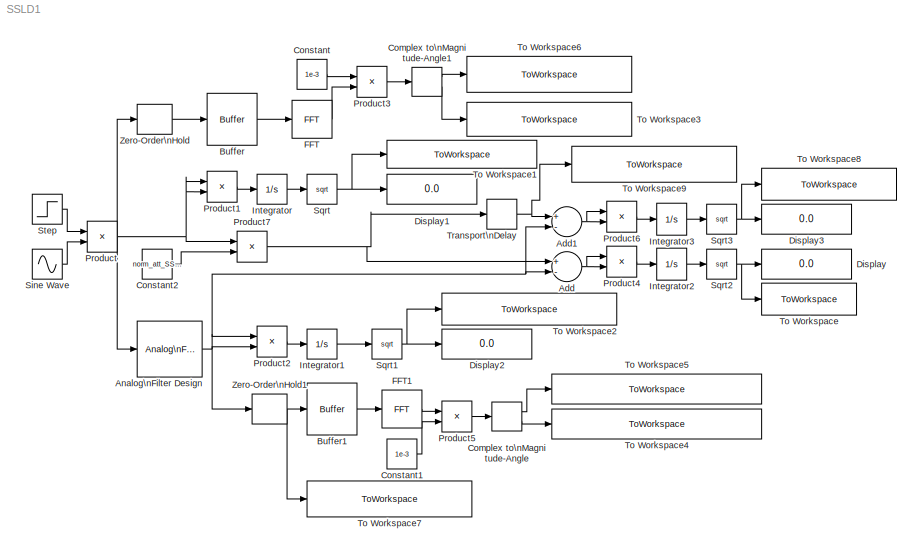
MODEL SSLD1
KIND model
BLOCK [Sum] Add
  InputSameDT = off
  Inputs = +-
  OutDataTypeStr = Inherit: Inherit via internal rule
  Ports = [2, 1]
  SID = 22
  SaturateOnIntegerOverflow = off
BLOCK [Sum] Add1
  InputSameDT = off
  Inputs = +-
  OutDataTypeStr = Inherit: Inherit via internal rule
  Ports = [2, 1]
  SID = 116
  SaturateOnIntegerOverflow = off
BLOCK [Reference] Analog\nFilter Design  REF=dsparch4/Analog\nFilter Design
  N = 2
  Ports = [1, 1]
  Rp = 2
  Rs = 40
  SID = 37
  SourceBlock = dsparch4/Analog\nFilter Design
  SourceType = Analog Filter Design
  Whi = 80
  Wlo = cutoff_SSLD1*2*pi
  filttype = Lowpass
  method = Butterworth
BLOCK [Buffer] Buffer
  N = 2000
  SID = 86
  TreatMby1Signals = One channel
BLOCK [Buffer] Buffer1
  N = 2000
  SID = 93
  TreatMby1Signals = One channel
BLOCK [ComplexToMagnitudeAngle] Complex to\nMagnitude-Angle
  Ports = [1, 2]
  SID = 108
BLOCK [ComplexToMagnitudeAngle] Complex to\nMagnitude-Angle1
  Ports = [1, 2]
  SID = 111
BLOCK [Constant] Constant
  SID = 102
  Value = 1e-3
BLOCK [Constant] Constant1
  SID = 104
  Value = 1e-3
BLOCK [Constant] Constant2
  SID = 125
  Value = norm_att_SSLD1
BLOCK [Display] Display
  Decimation = 1
  Ports = [1]
  SID = 34
BLOCK [Display] Display1
  Decimation = 1
  Ports = [1]
  SID = 51
BLOCK [Display] Display2
  Decimation = 1
  Ports = [1]
  SID = 58
BLOCK [Display] Display3
  Decimation = 1
  Ports = [1]
  SID = 117
BLOCK [Reference] FFT  REF=dspxfrm3/FFT
  BitRevOrder = off
  CompMethod = Table lookup
  FFTImplementation = FFTW
  FFTLength = 64
  InheritFFTLength = on
  LockScale = off
  Ports = [1, 1]
  RowConvenienceOn = on
  SID = 92
  SkipNorm = off
  SourceBlock = dspxfrm3/FFT
  SourceType = FFT
  TableOpt = NEW
  TableOptActive = Speed
  WrapInput = on
  accumDataTypeStr = Inherit: Inherit via internal rule
  accumFracLength = 30
  accumLastDataTypeStr = Inherit: Inherit via internal rule
  accumMode = Inherit via internal rule
  accumWordLength = 32
  additionalParams = off
  allowOverrides = on
  firstCoeffDataTypeStr = Inherit: Same word length as input
  firstCoeffFracLength = 15
  firstCoeffLastDataTypeStr = Inherit: Same word length as input
  firstCoeffMode = Same word length as input
  firstCoeffWordLength = 16
  outputDataTypeStr = Inherit: Inherit via internal rule
  outputFracLength = 15
  outputLastDataTypeStr = Inherit: Inherit via internal rule
  outputMax = []
  outputMin = []
  outputMode = Inherit via internal rule
  outputWordLength = 16
  overflowMode = off
  prodOutputDataTypeStr = Inherit: Inherit via internal rule
  prodOutputFracLength = 30
  prodOutputLastDataTypeStr = Inherit: Inherit via internal rule
  prodOutputMode = Inherit via internal rule
  prodOutputWordLength = 32
  roundingMode = Floor
BLOCK [Reference] FFT1  REF=dspxfrm3/FFT
  BitRevOrder = off
  CompMethod = Table lookup
  FFTImplementation = FFTW
  FFTLength = 64
  InheritFFTLength = on
  LockScale = off
  Ports = [1, 1]
  RowConvenienceOn = on
  SID = 94
  SkipNorm = off
  SourceBlock = dspxfrm3/FFT
  SourceType = FFT
  TableOpt = NEW
  TableOptActive = Speed
  WrapInput = on
  accumDataTypeStr = Inherit: Inherit via internal rule
  accumFracLength = 30
  accumLastDataTypeStr = Inherit: Inherit via internal rule
  accumMode = Inherit via internal rule
  accumWordLength = 32
  additionalParams = off
  allowOverrides = on
  firstCoeffDataTypeStr = Inherit: Same word length as input
  firstCoeffFracLength = 15
  firstCoeffLastDataTypeStr = Inherit: Same word length as input
  firstCoeffMode = Same word length as input
  firstCoeffWordLength = 16
  outputDataTypeStr = Inherit: Inherit via internal rule
  outputFracLength = 15
  outputLastDataTypeStr = Inherit: Inherit via internal rule
  outputMax = []
  outputMin = []
  outputMode = Inherit via internal rule
  outputWordLength = 16
  overflowMode = off
  prodOutputDataTypeStr = Inherit: Inherit via internal rule
  prodOutputFracLength = 30
  prodOutputLastDataTypeStr = Inherit: Inherit via internal rule
  prodOutputMode = Inherit via internal rule
  prodOutputWordLength = 32
  roundingMode = Floor
BLOCK [Integrator] Integrator
  Ports = [1, 1]
  SID = 4
BLOCK [Integrator] Integrator1
  Ports = [1, 1]
  SID = 13
BLOCK [Integrator] Integrator2
  Ports = [1, 1]
  SID = 25
BLOCK [Integrator] Integrator3
  Ports = [1, 1]
  SID = 118
BLOCK [Product] Product
  InputSameDT = off
  OutDataTypeStr = Inherit: Inherit via internal rule
  Ports = [2, 1]
  SID = 6
  SaturateOnIntegerOverflow = off
BLOCK [Product] Product1
  InputSameDT = off
  OutDataTypeStr = Inherit: Inherit via internal rule
  Ports = [2, 1]
  SID = 7
  SaturateOnIntegerOverflow = off
BLOCK [Product] Product2
  InputSameDT = off
  OutDataTypeStr = Inherit: Inherit via internal rule
  Ports = [2, 1]
  SID = 14
  SaturateOnIntegerOverflow = off
BLOCK [Product] Product3
  InputSameDT = off
  OutDataTypeStr = Inherit: Inherit via internal rule
  Ports = [2, 1]
  SID = 101
  SaturateOnIntegerOverflow = off
BLOCK [Product] Product4
  InputSameDT = off
  OutDataTypeStr = Inherit: Inherit via internal rule
  Ports = [2, 1]
  SID = 23
  SaturateOnIntegerOverflow = off
BLOCK [Product] Product5
  InputSameDT = off
  OutDataTypeStr = Inherit: Inherit via internal rule
  Ports = [2, 1]
  SID = 106
  SaturateOnIntegerOverflow = off
BLOCK [Product] Product6
  InputSameDT = off
  OutDataTypeStr = Inherit: Inherit via internal rule
  Ports = [2, 1]
  SID = 119
  SaturateOnIntegerOverflow = off
BLOCK [Product] Product7
  InputSameDT = off
  OutDataTypeStr = Inherit: Inherit via internal rule
  Ports = [2, 1]
  SID = 123
  SaturateOnIntegerOverflow = off
BLOCK [Sin] Sine Wave
  Frequency = 2*pi*10
  Ports = [0, 1]
  SID = 3
  SampleTime = 0
BLOCK [Sqrt] Sqrt
  SID = 8
BLOCK [Sqrt] Sqrt1
  SID = 15
BLOCK [Sqrt] Sqrt2
  SID = 24
BLOCK [Sqrt] Sqrt3
  SID = 120
BLOCK [Step] Step
  After = 0
  Before = 1
  SID = 2
  SampleTime = 0
  Time = 0.05
BLOCK [ToWorkspace] To Workspace
  MaxDataPoints = 1
  Ports = [1]
  SID = 54
  SampleTime = -1
  VariableName = distance_SSLD1
BLOCK [ToWorkspace] To Workspace1
  MaxDataPoints = 1
  Ports = [1]
  SID = 55
  SampleTime = -1
  VariableName = norm_sine_pulse_SSLD1
BLOCK [ToWorkspace] To Workspace2
  MaxDataPoints = 1
  Ports = [1]
  SID = 56
  SampleTime = -1
  VariableName = norm_filtered_sine_pulse_SSLD1
BLOCK [ToWorkspace] To Workspace3
  MaxDataPoints = 200000
  Ports = [1]
  SID = 61
  SampleTime = -1
  VariableName = sine_pulse_FFT_arg_SSLD1
BLOCK [ToWorkspace] To Workspace4
  MaxDataPoints = 200000
  Ports = [1]
  SID = 95
  SampleTime = -1
  VariableName = filtered_sine_pulse_FFT_arg_SSLD1
BLOCK [ToWorkspace] To Workspace5
  MaxDataPoints = 200000
  Ports = [1]
  SID = 109
  SampleTime = -1
  VariableName = filtered_sine_pulse_FFT_amp_SSLD1
BLOCK [ToWorkspace] To Workspace6
  MaxDataPoints = 2000000
  Ports = [1]
  SID = 112
  SampleTime = -1
  VariableName = sine_pulse_FFT_amp_SSLD1
BLOCK [ToWorkspace] To Workspace7
  MaxDataPoints = 2000000
  Ports = [1]
  SID = 113
  SampleTime = -1
  VariableName = f_sine_pulse_SSLD1
BLOCK [ToWorkspace] To Workspace8
  MaxDataPoints = 1
  Ports = [1]
  SID = 121
  SampleTime = -1
  VariableName = distance_delayed_SSLD1
BLOCK [ToWorkspace] To Workspace9
  MaxDataPoints = 2000000
  Ports = [1]
  SID = 122
  SampleTime = -1
  VariableName = sine_pulse_del_SSLD
BLOCK [TransportDelay] Transport\nDelay
  DelayTime = delay_SSLD1
  Ports = [1, 1]
  SID = 115
BLOCK [ZeroOrderHold] Zero-Order\nHold
  SID = 85
  SampleTime = 1e-3
BLOCK [ZeroOrderHold] Zero-Order\nHold1
  SID = 96
  SampleTime = 1e-3
NET Add1:1 -> Product6:1, Product6:2
NET Add:1 -> Product4:1, Product4:2
NET Analog\nFilter Design:1 -> Add1:2, Add:2, Product2:1, Product2:2, Zero-Order\nHold1:1
LINE Buffer1:1 -> FFT1:1
LINE Buffer:1 -> FFT:1
LINE Complex to\nMagnitude-Angle1:1 -> To Workspace6:1
LINE Complex to\nMagnitude-Angle1:2 -> To Workspace3:1
LINE Complex to\nMagnitude-Angle:1 -> To Workspace5:1
LINE Complex to\nMagnitude-Angle:2 -> To Workspace4:1
LINE Constant1:1 -> Product5:2
LINE Constant2:1 -> Product7:2
LINE Constant:1 -> Product3:1
LINE FFT1:1 -> Product5:1
LINE FFT:1 -> Product3:2
LINE Integrator1:1 -> Sqrt1:1
LINE Integrator2:1 -> Sqrt2:1
LINE Integrator3:1 -> Sqrt3:1
LINE Integrator:1 -> Sqrt:1
LINE Product1:1 -> Integrator:1
LINE Product2:1 -> Integrator1:1
LINE Product3:1 -> Complex to\nMagnitude-Angle1:1
LINE Product4:1 -> Integrator2:1
LINE Product5:1 -> Complex to\nMagnitude-Angle:1
LINE Product6:1 -> Integrator3:1
NET Product7:1 -> Add:1, Transport\nDelay:1
NET Product:1 -> Analog\nFilter Design:1, Product1:1, Product1:2, Product7:1, Zero-Order\nHold:1
LINE Sine Wave:1 -> Product:2
NET Sqrt1:1 -> Display2:1, To Workspace2:1
NET Sqrt2:1 -> Display:1, To Workspace:1
NET Sqrt3:1 -> Display3:1, To Workspace8:1
NET Sqrt:1 -> Display1:1, To Workspace1:1
LINE Step:1 -> Product:1
NET Transport\nDelay:1 -> Add1:1, To Workspace9:1
NET Zero-Order\nHold1:1 -> Buffer1:1, To Workspace7:1
LINE Zero-Order\nHold:1 -> Buffer:1
note: NET lines group one-source signal fan-out (src -> all destinations, sorted); 1:1 wires keep LINE
